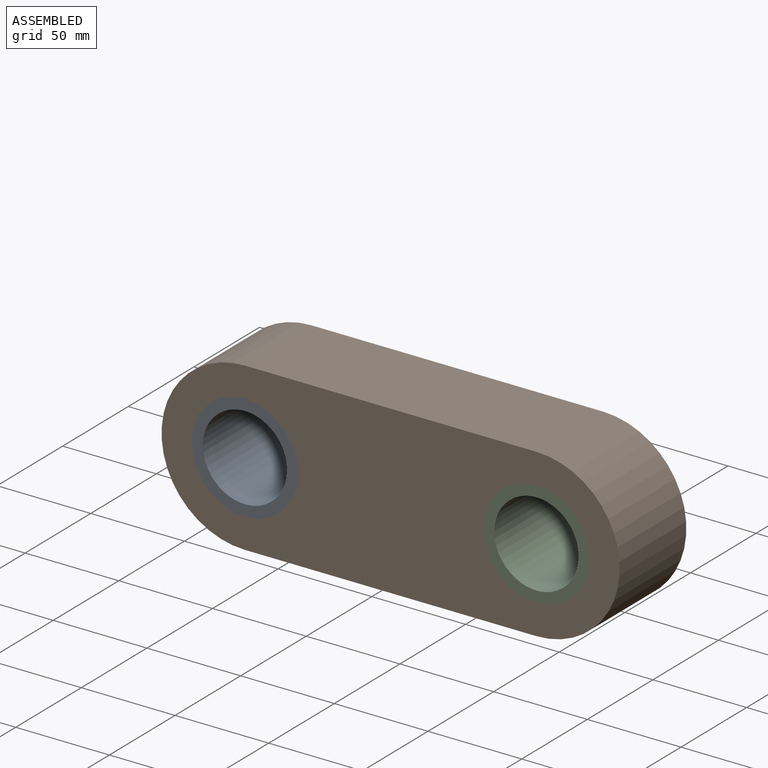
[diagram: assembled view]
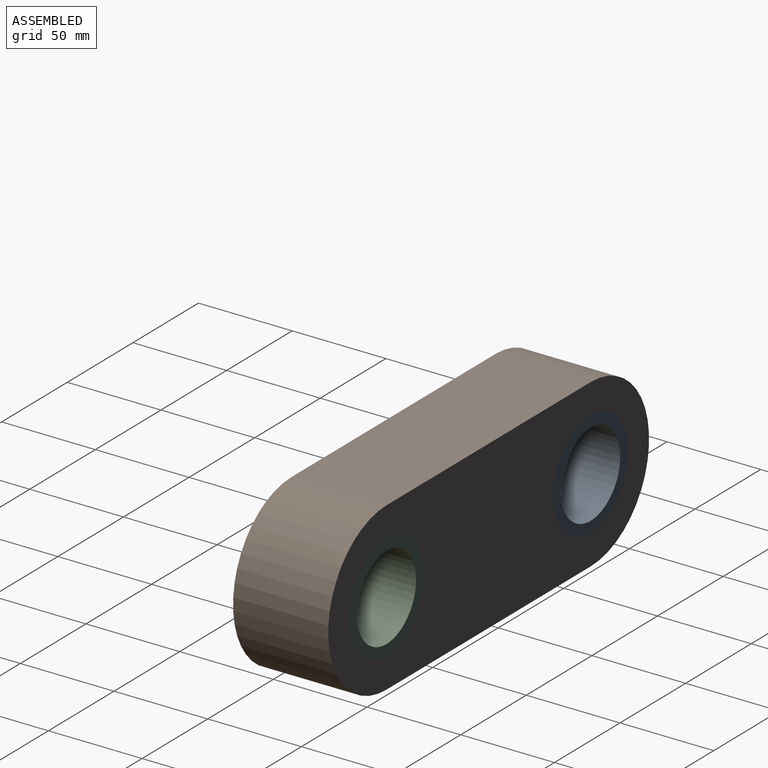
[diagram: assembled view, second angle]
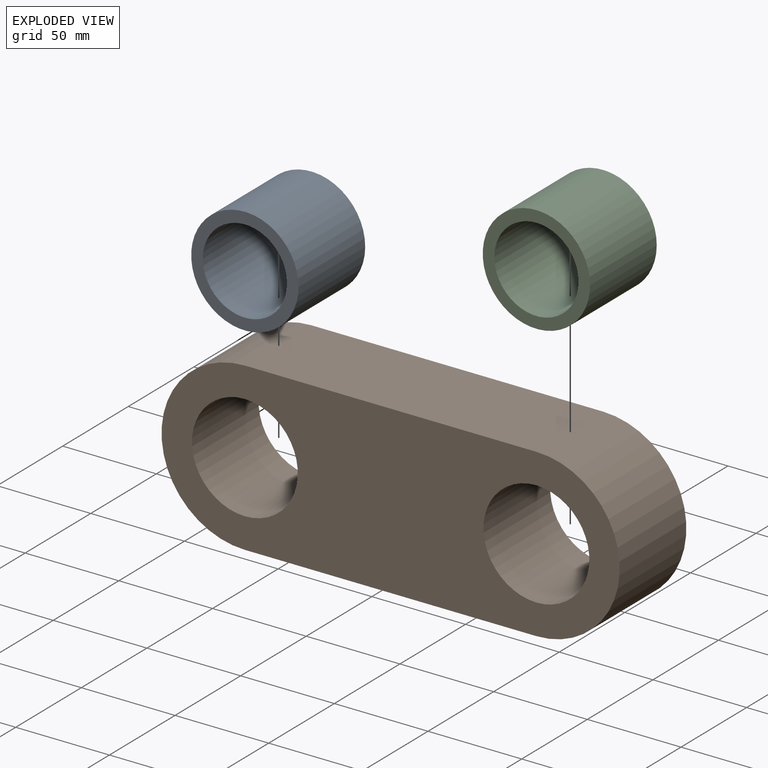
[diagram: exploded view]
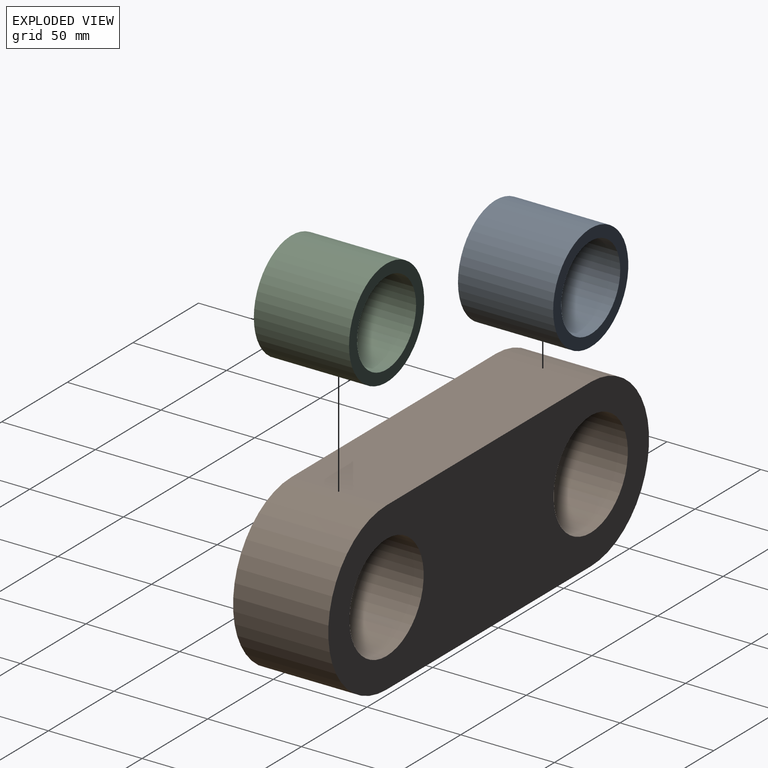
[diagram: exploded view, second angle]
ASSEMBLY  parts=3 mates=2
PART A: 4 faces, bbox 57.3x57.3x50.8 mm
  f0: cylinder r=22.48mm len=50.8mm, axis (0,0,-1), area 7175mm2, adj f2,f3
  f1: cylinder r=28.64mm len=57.28mm, axis (0,0,-1), area 9141mm2, adj f2,f3
  f2: plane 57.28x57.28mm, normal (0,0,1), area 989.2mm2, adj f0,f1
  f3: plane 57.28x57.28mm, normal (0,0,-1), area 989.2mm2, adj f0,f1
PART B: 8 faces, bbox 244.5x50.8x88.9 mm
  f0: cylinder r=44.45mm len=88.9mm, axis (0,1,0), area 7093.9mm2, adj f1,f5,f6,f7
  f1: plane 155.58x50.8mm, normal (0,0,-1), area 7903.2mm2, adj f0,f2,f6,f7
  f2: cylinder r=44.45mm len=88.9mm, axis (0,1,0), area 7093.9mm2, adj f1,f5,f6,f7
  f3: cylinder r=28.26mm len=56.52mm, axis (0,1,0), area 9019.4mm2, adj f6,f7
  f4: cylinder r=28.26mm len=56.52mm, axis (0,1,0), area 9019.4mm2, adj f6,f7
  f5: plane 155.58x50.8mm, normal (0,0,1), area 7903.2mm2, adj f0,f2,f6,f7
  f6: plane 244.48x88.9mm, normal (0,-1,0), area 15020.7mm2, adj f0,f1,f2,f3,f4,f5
  f7: plane 244.48x88.9mm, normal (0,1,0), area 15020.7mm2, adj f0,f1,f2,f3,f4,f5
PART C: same geometry as A
PLACE A rot(axis=(1,0,0),90deg) t=(-118.28,1.57,-0.67)mm
PLACE B t=(-40.5,1.57,-0.67)mm
PLACE C rot(axis=(1,0,0),90deg) t=(37.29,1.57,-0.67)mm
MATE cylindrical C.f0 <-> B.f3  axis (0,1,0) through (37.29,1.57,-0.67)mm
MATE cylindrical A.f1 <-> B.f4  axis (0,-1,0) through (-118.28,-49.23,-0.67)mm
